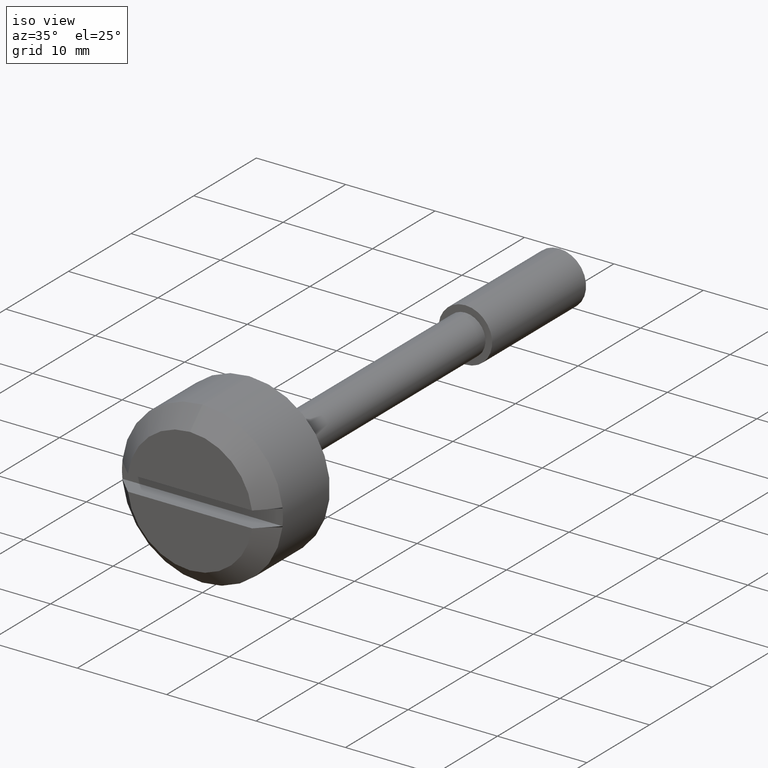
[diagram: clean part render]
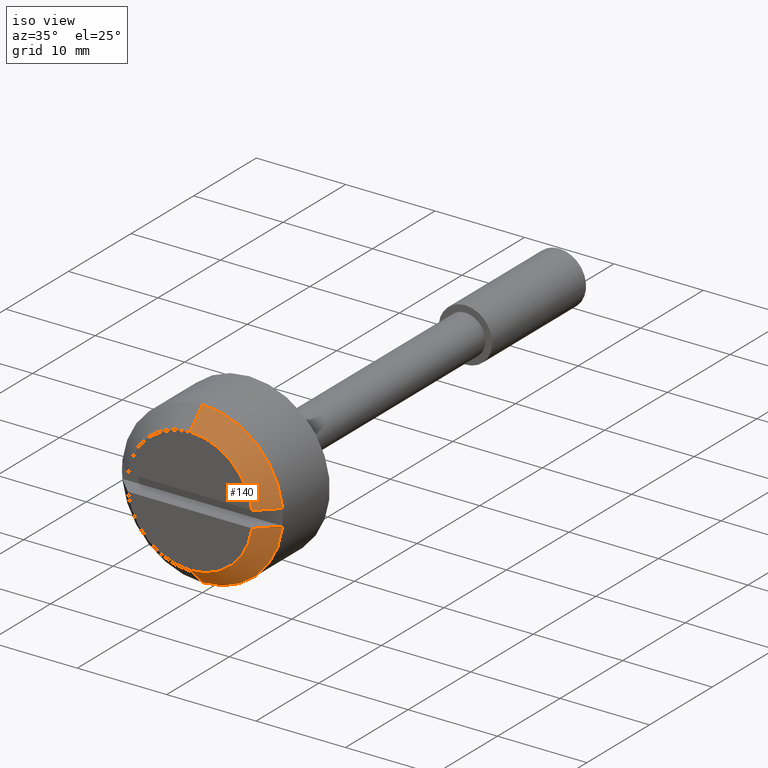
[diagram: same view with one face highlighted and labeled with its STEP entity id]
A machine part, iso view. The second image highlights one B-rep face of the part: STEP entity #140.
In plain terms, the highlighted face is a freeform B-spline surface patch.
Its self-contained STEP definition (entity closure, byte-faithful):
#140=ADVANCED_FACE('',(#440),#439,.T.);
#439=( BOUNDED_SURFACE() B_SPLINE_SURFACE( 2,1,((#724,#725),(#726,#727),(#728,#729),(#730,#731),(#732,#733)), .UNSPECIFIED.,.F.,.F.,.F.) B_SPLINE_SURFACE_WITH_KNOTS((3,2,3),(2,2),(0.00000000000E+00,5.00000000000E-01,1.00000000000E+00),(0.00000000000E+00,1.00000000000E+00), .UNSPECIFIED. ) GEOMETRIC_REPRESENTATION_ITEM() RATIONAL_B_SPLINE_SURFACE(((1.00000000000E+00,1.00000000000E+00),(7.07106781187E-01,7.07106781187E-01),(1.00000000000E+00,1.00000000000E+00),(7.07106781187E-01,7.07106781187E-01),(1.00000000000E+00,1.00000000000E+00))) REPRESENTATION_ITEM('') SURFACE() );
#440=FACE_OUTER_BOUND('',#734,.T.);
#724=CARTESIAN_POINT('',(-1.89999000000E+01,0.00000000000E+00,0.00000000000E+00));
#725=CARTESIAN_POINT('',(-6.27197793865E+00,-3.11744180245E-15,1.27279220614E+01));
#726=CARTESIAN_POINT('',(-1.89999000000E+01,0.00000000000E+00,0.00000000000E+00));
#727=CARTESIAN_POINT('',(-6.27197793865E+00,-1.27279220614E+01,1.27279220614E+01));
#728=CARTESIAN_POINT('',(-1.89999000000E+01,0.00000000000E+00,0.00000000000E+00));
#729=CARTESIAN_POINT('',(-6.27197793865E+00,-1.27279220614E+01,-2.33808135184E-15));
#730=CARTESIAN_POINT('',(-1.89999000000E+01,0.00000000000E+00,0.00000000000E+00));
#731=CARTESIAN_POINT('',(-6.27197793865E+00,-1.27279220614E+01,-1.27279220614E+01));
#732=CARTESIAN_POINT('',(-1.89999000000E+01,0.00000000000E+00,0.00000000000E+00));
#733=CARTESIAN_POINT('',(-6.27197793865E+00,1.55872090122E-15,-1.27279220614E+01));
#734=EDGE_LOOP('',(#968,#969,#970,#971,#972,#973,#974,#975));
#968=ORIENTED_EDGE('',*,*,#1110,.T.);
#969=ORIENTED_EDGE('',*,*,#1111,.F.);
#970=ORIENTED_EDGE('',*,*,#1108,.F.);
#971=ORIENTED_EDGE('',*,*,#1086,.T.);
#972=ORIENTED_EDGE('',*,*,#1088,.T.);
#973=ORIENTED_EDGE('',*,*,#1091,.T.);
#974=ORIENTED_EDGE('',*,*,#1103,.F.);
#975=ORIENTED_EDGE('',*,*,#1112,.T.);
#1086=EDGE_CURVE('',#1505,#1498,#1506,.T.);
#1088=EDGE_CURVE('',#1498,#1518,#1519,.T.);
#1091=EDGE_CURVE('',#1518,#1538,#1539,.T.);
#1103=EDGE_CURVE('',#1614,#1538,#1621,.T.);
#1108=EDGE_CURVE('',#1505,#1655,#1656,.T.);
#1110=EDGE_CURVE('',#1668,#1669,#1670,.T.);
#1111=EDGE_CURVE('',#1655,#1669,#1676,.T.);
#1112=EDGE_CURVE('',#1614,#1668,#1682,.T.);
#1498=VERTEX_POINT('',#2017);
#1505=VERTEX_POINT('',#2021);
#1506=(BOUNDED_CURVE() B_SPLINE_CURVE(3,(#2022,#2023,#2024,#2025),.UNSPECIFIED.,.F.,.F.) B_SPLINE_CURVE_WITH_KNOTS((4,4),(3.68298790014E-02,3.96928572527E-02),.UNSPECIFIED.) CURVE() GEOMETRIC_REPRESENTATION_ITEM() RATIONAL_B_SPLINE_CURVE((1.00000000000E+00,1.00000000000E+00,1.00000000000E+00,1.00000000000E+00)) REPRESENTATION_ITEM('') );
#1518=VERTEX_POINT('',#2029);
#1519=CIRCLE('',#2033,8.99990000000E+00);
#1538=VERTEX_POINT('',#2042);
#1539=(BOUNDED_CURVE() B_SPLINE_CURVE(3,(#2043,#2044,#2045,#2046),.UNSPECIFIED.,.F.,.F.) B_SPLINE_CURVE_WITH_KNOTS((4,4),(1.52743872715E-02,1.81118693173E-02),.UNSPECIFIED.) CURVE() GEOMETRIC_REPRESENTATION_ITEM() RATIONAL_B_SPLINE_CURVE((1.00000000000E+00,1.00000000000E+00,1.00000000000E+00,1.00000000000E+00)) REPRESENTATION_ITEM('') );
#1614=VERTEX_POINT('',#2095);
#1621=CIRCLE('',#2103,7.00000000000E+00);
#1655=VERTEX_POINT('',#2124);
#1656=CIRCLE('',#2128,7.00000000000E+00);
#1668=VERTEX_POINT('',#2133);
#1669=VERTEX_POINT('',#2134);
#1670=CIRCLE('',#2138,9.00000000000E+00);
#1676=(BOUNDED_CURVE() B_SPLINE_CURVE(1,(#2139,#2140),.UNSPECIFIED.,.F.,.F.) B_SPLINE_CURVE_WITH_KNOTS((2,2),(5.49971939623E-01,7.07106780311E-01),.UNSPECIFIED.) CURVE() GEOMETRIC_REPRESENTATION_ITEM() RATIONAL_B_SPLINE_CURVE((1.00000000000E+00,1.00000000000E+00)) REPRESENTATION_ITEM('') );
#1682=(BOUNDED_CURVE() B_SPLINE_CURVE(1,(#2141,#2142),.UNSPECIFIED.,.F.,.F.) B_SPLINE_CURVE_WITH_KNOTS((2,2),(5.49971940812E-01,7.07106781187E-01),.UNSPECIFIED.) CURVE() GEOMETRIC_REPRESENTATION_ITEM() RATIONAL_B_SPLINE_CURVE((7.50000000000E-01,7.50000000000E-01)) REPRESENTATION_ITEM('') );
#2017=CARTESIAN_POINT('',(-1.00000000000E+01,-8.95478643017E+00,9.00000000000E-01));
#2021=CARTESIAN_POINT('',(-1.19999000000E+01,-6.94190175672E+00,9.00000000000E-01));
#2022=CARTESIAN_POINT('',(-1.19999000000E+01,-6.94190175672E+00,9.00000000000E-01));
#2023=CARTESIAN_POINT('',(-1.13338924097E+01,-7.61348330534E+00,9.00000000000E-01));
#2024=CARTESIAN_POINT('',(-1.06671192296E+01,-8.28430630192E+00,9.00000000000E-01));
#2025=CARTESIAN_POINT('',(-1.00000000000E+01,-8.95478643017E+00,9.00000000000E-01));
#2029=CARTESIAN_POINT('',(-1.00000000000E+01,-8.95478643017E+00,-9.00000000000E-01));
#2030=CARTESIAN_POINT('',(-1.00000000000E+01,0.00000000000E+00,0.00000000000E+00));
#2031=DIRECTION('',(1.00000000000E+00,0.00000000000E+00,-0.00000000000E+00));
#2032=DIRECTION('',(-0.00000000000E+00,-0.00000000000E+00,-1.00000000000E+00));
#2033=AXIS2_PLACEMENT_3D('',#2030,#2031,#2032);
#2042=CARTESIAN_POINT('',(-1.19999000000E+01,-6.94190175672E+00,-9.00000000000E-01));
#2043=CARTESIAN_POINT('',(-1.00000000000E+01,-8.95478643017E+00,-9.00000000000E-01));
#2044=CARTESIAN_POINT('',(-1.06671184612E+01,-8.28430707420E+00,-9.00000000000E-01));
#2045=CARTESIAN_POINT('',(-1.13338914218E+01,-7.61348430153E+00,-9.00000000000E-01));
#2046=CARTESIAN_POINT('',(-1.19999000000E+01,-6.94190175672E+00,-9.00000000000E-01));
#2095=CARTESIAN_POINT('',(-1.19999000000E+01,4.46131334097E-11,-7.00000000000E+00));
#2100=CARTESIAN_POINT('',(-1.19999000000E+01,0.00000000000E+00,0.00000000000E+00));
#2101=DIRECTION('',(-1.00000000000E+00,0.00000000000E+00,0.00000000000E+00));
#2102=DIRECTION('',(-0.00000000000E+00,9.91700250960E-01,-1.28571428572E-01));
#2103=AXIS2_PLACEMENT_3D('',#2100,#2101,#2102);
#2124=CARTESIAN_POINT('',(-1.19999000000E+01,-7.64783999247E-11,7.00000000000E+00));
#2125=CARTESIAN_POINT('',(-1.19999000000E+01,0.00000000000E+00,0.00000000000E+00));
#2126=DIRECTION('',(-1.00000000000E+00,0.00000000000E+00,0.00000000000E+00));
#2127=DIRECTION('',(-0.00000000000E+00,-0.00000000000E+00,-1.00000000000E+00));
#2128=AXIS2_PLACEMENT_3D('',#2125,#2126,#2127);
#2133=CARTESIAN_POINT('',(-9.99990000000E+00,5.92118946467E-16,-9.00000000000E+00));
#2134=CARTESIAN_POINT('',(-9.99990000000E+00,0.00000000000E+00,9.00000000000E+00));
#2135=CARTESIAN_POINT('',(-9.99990000000E+00,0.00000000000E+00,0.00000000000E+00));
#2136=DIRECTION('',(-1.00000000000E+00,0.00000000000E+00,0.00000000000E+00));
#2137=DIRECTION('',(0.00000000000E+00,-1.22460635382E-16,1.00000000000E+00));
#2138=AXIS2_PLACEMENT_3D('',#2135,#2136,#2137);
#2139=CARTESIAN_POINT('',(-1.19999000165E+01,-1.71444889130E-15,6.99999998346E+00));
#2140=CARTESIAN_POINT('',(-9.99990001114E+00,-2.20429143415E-15,8.99999998886E+00));
#2141=CARTESIAN_POINT('',(-1.19999000014E+01,1.95389283708E-15,-6.99999999858E+00));
#2142=CARTESIAN_POINT('',(-9.99990000000E+00,2.51214793389E-15,-9.00000000000E+00));